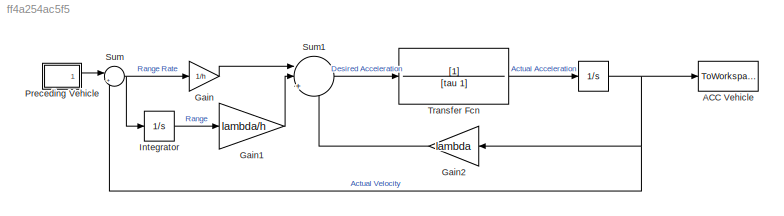
MODEL slx_ff4a254ac5f5
KIND model
CONFIG AbsTol = auto
CONFIG EnableMultiTasking = off
CONFIG FixedStep = auto
CONFIG MaxStep = .1
CONFIG MinStep = auto
CONFIG RelTol = 1e-3
CONFIG SampleTimeConstraint = Unconstrained
CONFIG Solver = ode45
CONFIG SolverName = ode45
CONFIG StartTime = 0.0
CONFIG StopTime = tsim
BLOCK [Integrator]  
  InitialCondition = StartVel
  Ports = [1, 1]
BLOCK [ToWorkspace] ACC Vehicle
  FixptAsFi = on
  MaxDataPoints = inf
  Ports = [1]
  SampleTime = -1
  Save2DSignal = 3-D array (concatenate along third dimension)
  VariableName = OUTVEL
BLOCK [Gain] Gain
  Gain = 1/h
  OutDataTypeStr = Inherit: Inherit via internal rule
  ParamDataTypeStr = Inherit: Inherit via internal rule
  SaturateOnIntegerOverflow = off
BLOCK [Gain] Gain1
  Gain = lambda/h
  OutDataTypeStr = Inherit: Inherit via internal rule
  ParamDataTypeStr = Inherit: Inherit via internal rule
  SaturateOnIntegerOverflow = off
BLOCK [Gain] Gain2
  Gain = lambda
  OutDataTypeStr = Inherit: Inherit via internal rule
  ParamDataTypeStr = Inherit: Inherit via internal rule
  SaturateOnIntegerOverflow = off
BLOCK [Integrator] Integrator
  InitialCondition = h*StartVel
  Ports = [1, 1]
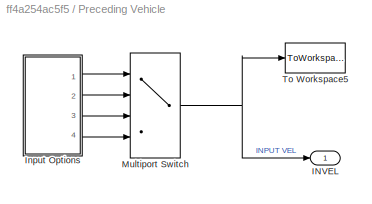
BLOCK [SubSystem] Preceding Vehicle
  Ports = [0, 1]
  RequestExecContextInheritance = off
BLOCK [Outport] Preceding Vehicle/INVEL
  IconDisplay = Port number
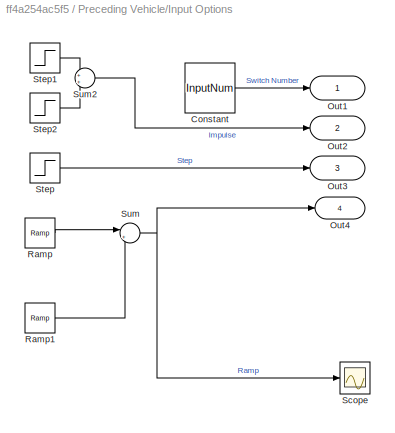
BLOCK [SubSystem] Preceding Vehicle/Input Options
  Ports = [0, 4]
  RequestExecContextInheritance = off
BLOCK [Constant] Preceding Vehicle/Input Options/Constant
  Value = InputNum
BLOCK [Outport] Preceding Vehicle/Input Options/Out1
  IconDisplay = Port number and signal name
BLOCK [Outport] Preceding Vehicle/Input Options/Out2
  IconDisplay = Port number and signal name
  Port = 2
BLOCK [Outport] Preceding Vehicle/Input Options/Out3
  IconDisplay = Port number and signal name
  Port = 3
BLOCK [Outport] Preceding Vehicle/Input Options/Out4
  IconDisplay = Port number and signal name
  Port = 4
BLOCK [Reference] Preceding Vehicle/Input Options/Ramp  REF=simulink/Sources/Ramp
  Ports = [0, 1]
  SourceBlock = simulink/Sources/Ramp
  SourceProductBaseCode = SL
  SourceProductName = Simulink
  SourceType = Ramp
BLOCK [Reference] Preceding Vehicle/Input Options/Ramp1  REF=simulink/Sources/Ramp
  Ports = [0, 1]
  SourceBlock = simulink/Sources/Ramp
  SourceProductBaseCode = SL
  SourceProductName = Simulink
  SourceType = Ramp
BLOCK [Scope] Preceding Vehicle/Input Options/Scope
  Floating = off
  NumInputPorts = 1
  Ports = [1]
  ScopeSpecificationString = Simulink.scopes.TimeScopeBlockCfg('CurrentConfiguration', extmgr.ConfigurationSet(extmgr.Configuration('Core','General UI',true),extmgr.Configuration('Core','Source UI',true),extmgr.Configuration('Sources','WiredSimulink',true,'DataLoggingVariableName','ScopeData1'),extmgr.Configuration('Visuals','Time Domain',true,'SerializedDisplays',{struct('MinYLimReal','5.16062','MaxYLimReal','23.55438','YLab...<+1396ch>
BLOCK [Step] Preceding Vehicle/Input Options/Step
  After = EndVel
  Before = StartVel
  SampleTime = 0
  Time = InputTime
BLOCK [Step] Preceding Vehicle/Input Options/Step1
  After = StartVel+(1*10^10)
  Before = StartVel
  SampleTime = 0
  Time = InputTime
BLOCK [Step] Preceding Vehicle/Input Options/Step2
  After = -(1*10^10)
  SampleTime = 0
  Time = InputTime + (1*10^-10)
BLOCK [Sum] Preceding Vehicle/Input Options/Sum
  IconShape = round
  InputSameDT = off
  Inputs = |++
  OutDataTypeStr = Inherit: Inherit via internal rule
  Ports = [2, 1]
  SaturateOnIntegerOverflow = off
BLOCK [Sum] Preceding Vehicle/Input Options/Sum2
  IconShape = round
  InputSameDT = off
  OutDataTypeStr = Inherit: Inherit via internal rule
  Ports = [2, 1]
  SaturateOnIntegerOverflow = off
BLOCK [MultiPortSwitch] Preceding Vehicle/Multiport Switch
  InputSameDT = off
  Ports = [4, 1]
  SaturateOnIntegerOverflow = off
BLOCK [ToWorkspace] Preceding Vehicle/To Workspace5
  FixptAsFi = on
  MaxDataPoints = inf
  Ports = [1]
  SampleTime = -1
  Save2DSignal = 3-D array (concatenate along third dimension)
  VariableName = Input
BLOCK [Sum] Sum
  IconShape = round
  InputSameDT = off
  Inputs = |+-
  OutDataTypeStr = Inherit: Inherit via internal rule
  Ports = [2, 1]
  SaturateOnIntegerOverflow = off
BLOCK [Sum] Sum1
  IconShape = round
  InputSameDT = off
  Inputs = ||++-
  OutDataTypeStr = Inherit: Inherit via internal rule
  Ports = [3, 1]
  SaturateOnIntegerOverflow = off
BLOCK [TransferFcn] Transfer Fcn
  Denominator = [tau 1]
NET  :1 -> ACC Vehicle:1, Gain2:1, Sum:2
LINE Gain1:1 -> Sum1:2
LINE Gain2:1 -> Sum1:3
LINE Gain:1 -> Sum1:1
LINE Integrator:1 -> Gain1:1
LINE Preceding Vehicle/Input Options/Constant:1 -> Preceding Vehicle/Input Options/Out1:1
LINE Preceding Vehicle/Input Options/Ramp1:1 -> Preceding Vehicle/Input Options/Sum:2
LINE Preceding Vehicle/Input Options/Ramp:1 -> Preceding Vehicle/Input Options/Sum:1
LINE Preceding Vehicle/Input Options/Step1:1 -> Preceding Vehicle/Input Options/Sum2:1
LINE Preceding Vehicle/Input Options/Step2:1 -> Preceding Vehicle/Input Options/Sum2:2
LINE Preceding Vehicle/Input Options/Step:1 -> Preceding Vehicle/Input Options/Out3:1
LINE Preceding Vehicle/Input Options/Sum2:1 -> Preceding Vehicle/Input Options/Out2:1
NET Preceding Vehicle/Input Options/Sum:1 -> Preceding Vehicle/Input Options/Out4:1, Preceding Vehicle/Input Options/Scope:1
LINE Preceding Vehicle/Input Options:1 -> Preceding Vehicle/Multiport Switch:1
LINE Preceding Vehicle/Input Options:2 -> Preceding Vehicle/Multiport Switch:2
LINE Preceding Vehicle/Input Options:3 -> Preceding Vehicle/Multiport Switch:3
LINE Preceding Vehicle/Input Options:4 -> Preceding Vehicle/Multiport Switch:4
NET Preceding Vehicle/Multiport Switch:1 -> Preceding Vehicle/INVEL:1, Preceding Vehicle/To Workspace5:1
LINE Preceding Vehicle:1 -> Sum:1
LINE Sum1:1 -> Transfer Fcn:1
NET Sum:1 -> Gain:1, Integrator:1
LINE Transfer Fcn:1 ->  :1
note: NET lines group one-source signal fan-out (src -> all destinations, sorted); 1:1 wires keep LINE
